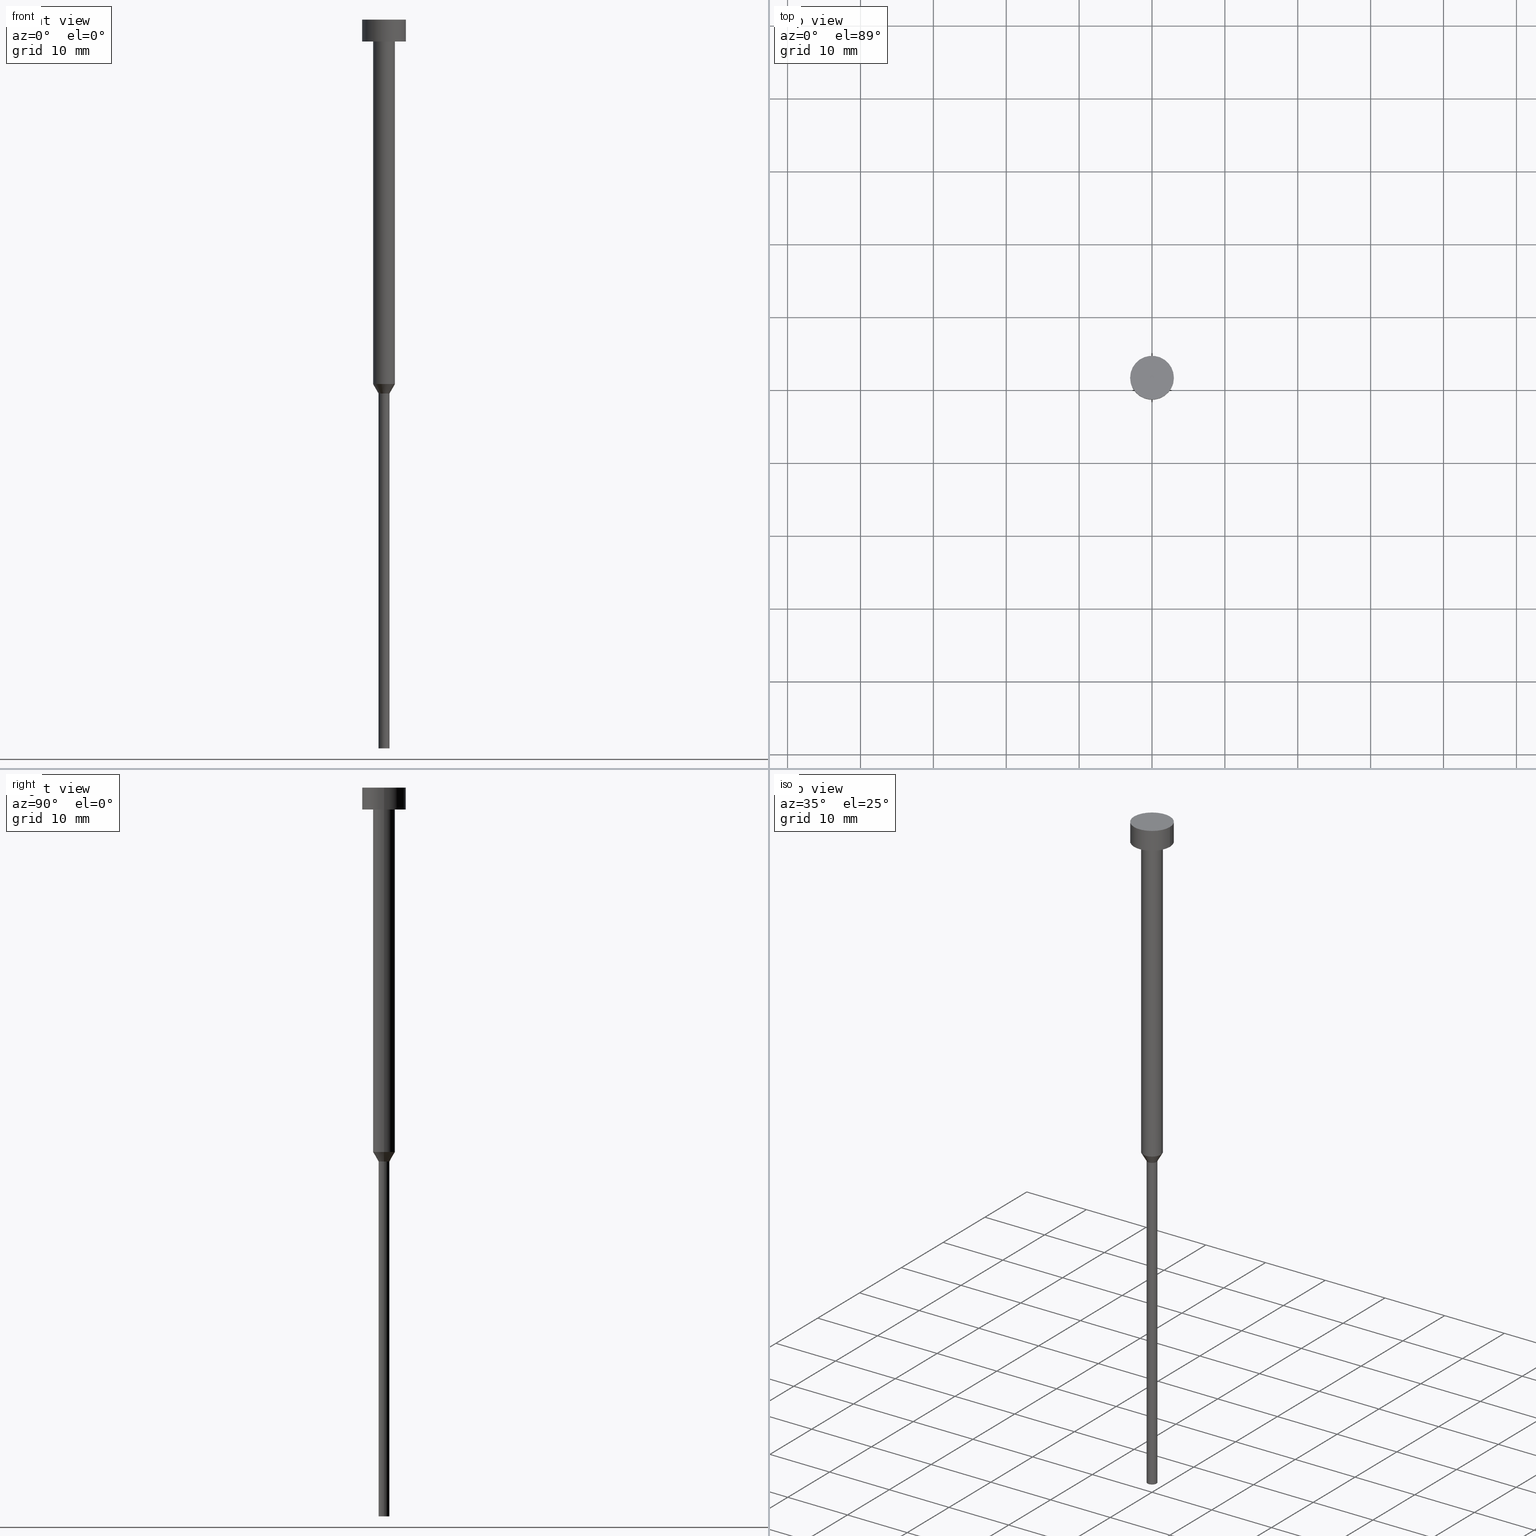
[diagram: canonical four-view strip — front | top / right | iso, engineering-drawing reading convention]
A machine part, canonical four-view strip (front | top / right | iso — engineering-drawing reading convention). The complete STEP part file that produces these views, byte-faithful:
ISO-10303-21;
HEADER;
FILE_DESCRIPTION (( 'STEP AP203' ),
    '1' );
FILE_NAME ('0ea3.STEP',
    '2023-02-13T10:57:13',
    ( '' ),
    ( '' ),
    'SwSTEP 2.0',
    'SolidWorks 2019',
    '' );
FILE_SCHEMA (( 'CONFIG_CONTROL_DESIGN' ));
ENDSEC;

DATA;
#1 = EDGE_LOOP ( 'NONE', ( #252, #6, #250, #31 ) ) ;
#2 = APPROVAL ( #184, 'NEUR�EN�' ) ;
#3 = CARTESIAN_POINT ( 'NONE',  ( 0.000000000000000000, 0.000000000000000000, -51.29903810567665090 ) ) ;
#4 = VECTOR ( 'NONE', #92, 1000.000000000000227 ) ;
#5 = VERTEX_POINT ( 'NONE', #287 ) ;
#6 = ORIENTED_EDGE ( 'NONE', *, *, #83, .T. ) ;
#7 = AXIS2_PLACEMENT_3D ( 'NONE', #312, #101, #75 ) ;
#8 = ORIENTED_EDGE ( 'NONE', *, *, #51, .F. ) ;
#9 = CARTESIAN_POINT ( 'NONE',  ( 1.500000000000000000, 0.000000000000000000, -50.00000000000000000 ) ) ;
#10 = AXIS2_PLACEMENT_3D ( 'NONE', #277, #228, #66 ) ;
#11 = FACE_OUTER_BOUND ( 'NONE', #29, .T. ) ;
#12 = CARTESIAN_POINT ( 'NONE',  ( -1.500000000000000000, 1.836970198721029934E-16, -3.000000000000000888 ) ) ;
#13 = CARTESIAN_POINT ( 'NONE',  ( 0.000000000000000000, 0.000000000000000000, -3.673940397442059868E-16 ) ) ;
#14 = EDGE_CURVE ( 'NONE', #143, #137, #78, .T. ) ;
#15 = AXIS2_PLACEMENT_3D ( 'NONE', #130, #344, #49 ) ;
#16 = AXIS2_PLACEMENT_3D ( 'NONE', #227, #333, #146 ) ;
#17 = CALENDAR_DATE ( 2023, 13, 2 ) ;
#18 = ADVANCED_FACE ( 'NONE', ( #289 ), #345, .T. ) ;
#19 = APPLICATION_PROTOCOL_DEFINITION ( 'international standard', 'config_control_design', 1994, #308 ) ;
#20 = ORIENTED_EDGE ( 'NONE', *, *, #99, .T. ) ;
#21 = PERSON_AND_ORGANIZATION ( #68, #275 ) ;
#22 = CARTESIAN_POINT ( 'NONE',  ( 0.000000000000000000, 0.000000000000000000, -3.000000000000000888 ) ) ;
#23 = LOCAL_TIME ( 11, 57, 13.00000000000000000, #288 ) ;
#24 = DIRECTION ( 'NONE',  ( -0.000000000000000000, -0.000000000000000000, 1.000000000000000000 ) ) ;
#25 = PERSON_AND_ORGANIZATION_ROLE ( 'design_supplier' ) ;
#26 = LINE ( 'NONE', #103, #52 ) ;
#27 = AXIS2_PLACEMENT_3D ( 'NONE', #251, #300, #109 ) ;
#28 = DIRECTION ( 'NONE',  ( 1.000000000000000000, 0.000000000000000000, 0.000000000000000000 ) ) ;
#29 = EDGE_LOOP ( 'NONE', ( #276, #297, #327, #221 ) ) ;
#30 = CARTESIAN_POINT ( 'NONE',  ( 0.000000000000000000, 0.000000000000000000, -50.00000000000000000 ) ) ;
#31 = ORIENTED_EDGE ( 'NONE', *, *, #285, .F. ) ;
#32 = CARTESIAN_POINT ( 'NONE',  ( -3.000000000000000000, 3.673940397442059868E-16, 0.000000000000000000 ) ) ;
#33 = DIRECTION ( 'NONE',  ( 1.000000000000000000, 0.000000000000000000, 0.000000000000000000 ) ) ;
#34 = VECTOR ( 'NONE', #111, 1000.000000000000000 ) ;
#35 = ORIENTED_EDGE ( 'NONE', *, *, #55, .F. ) ;
#36 = ORIENTED_EDGE ( 'NONE', *, *, #55, .T. ) ;
#37 = DIRECTION ( 'NONE',  ( 1.000000000000000000, 0.000000000000000000, 0.000000000000000000 ) ) ;
#38 = EDGE_CURVE ( 'NONE', #136, #194, #26, .T. ) ;
#39 = CARTESIAN_POINT ( 'NONE',  ( 1.500000000000000000, 0.000000000000000000, -3.000000000000000888 ) ) ;
#40 = CIRCLE ( 'NONE', #278, 0.7500000000000000000 ) ;
#41 = AXIS2_PLACEMENT_3D ( 'NONE', #57, #166, #85 ) ;
#42 = CALENDAR_DATE ( 2023, 13, 2 ) ;
#43 = DIRECTION ( 'NONE',  ( 1.000000000000000000, 0.000000000000000000, 0.000000000000000000 ) ) ;
#44 = DATE_TIME_ROLE ( 'creation_date' ) ;
#45 = DIRECTION ( 'NONE',  ( 1.000000000000000000, 0.000000000000000000, 0.000000000000000000 ) ) ;
#46 = ADVANCED_FACE ( 'NONE', ( #205 ), #208, .T. ) ;
#47 = PERSON_AND_ORGANIZATION ( #68, #275 ) ;
#48 = DIRECTION ( 'NONE',  ( 1.000000000000000000, 0.000000000000000000, 0.000000000000000000 ) ) ;
#49 = DIRECTION ( 'NONE',  ( 1.000000000000000000, 0.000000000000000000, 0.000000000000000000 ) ) ;
#50 = CARTESIAN_POINT ( 'NONE',  ( -1.500000000000000000, 1.836970198721029934E-16, 0.000000000000000000 ) ) ;
#51 = EDGE_CURVE ( 'NONE', #324, #270, #305, .T. ) ;
#52 = VECTOR ( 'NONE', #353, 1000.000000000000000 ) ;
#53 = ORIENTED_EDGE ( 'NONE', *, *, #267, .T. ) ;
#54 = CARTESIAN_POINT ( 'NONE',  ( 1.500000000000000000, 0.000000000000000000, 0.000000000000000000 ) ) ;
#55 = EDGE_CURVE ( 'NONE', #5, #270, #211, .T. ) ;
#56 = ORIENTED_EDGE ( 'NONE', *, *, #14, .F. ) ;
#57 = CARTESIAN_POINT ( 'NONE',  ( 0.000000000000000000, 0.000000000000000000, 0.000000000000000000 ) ) ;
#58 = ORIENTED_EDGE ( 'NONE', *, *, #213, .T. ) ;
#59 = CARTESIAN_POINT ( 'NONE',  ( 3.000000000000000000, 0.000000000000000000, 0.000000000000000000 ) ) ;
#60 = EDGE_LOOP ( 'NONE', ( #20, #193, #110, #165 ) ) ;
#61 = CC_DESIGN_DATE_AND_TIME_ASSIGNMENT ( #341, #44, ( #133 ) ) ;
#62 = CC_DESIGN_DATE_AND_TIME_ASSIGNMENT ( #317, #153, ( #176 ) ) ;
#63 = DIRECTION ( 'NONE',  ( -1.000000000000000000, 0.000000000000000000, -0.000000000000000000 ) ) ;
#64 = LOCAL_TIME ( 11, 57, 13.00000000000000000, #265 ) ;
#65 = ORIENTED_EDGE ( 'NONE', *, *, #83, .F. ) ;
#66 = DIRECTION ( 'NONE',  ( 1.000000000000000000, 0.000000000000000000, 0.000000000000000000 ) ) ;
#67 = EDGE_CURVE ( 'NONE', #5, #271, #95, .T. ) ;
#68 = PERSON ( 'NEUR�EN�', 'NEUR�EN�', 'NEUR�EN�', ('NEUR�EN�'), ('NEUR�EN�'), ('NEUR�EN�') ) ;
#69 = DIRECTION ( 'NONE',  ( 1.000000000000000000, 0.000000000000000000, 0.000000000000000000 ) ) ;
#70 = CARTESIAN_POINT ( 'NONE',  ( 0.000000000000000000, -3.000000000000000000, -3.000000000000000888 ) ) ;
#71 =( LENGTH_UNIT ( ) NAMED_UNIT ( * ) SI_UNIT ( .MILLI., .METRE. ) );
#72 = DATE_AND_TIME ( #210, #64 ) ;
#73 = CIRCLE ( 'NONE', #301, 0.7500000000000000000 ) ;
#74 = PERSON_AND_ORGANIZATION ( #68, #275 ) ;
#75 = DIRECTION ( 'NONE',  ( 1.000000000000000000, 0.000000000000000000, 0.000000000000000000 ) ) ;
#76 = PERSON_AND_ORGANIZATION_ROLE ( 'design_owner' ) ;
#77 = CARTESIAN_POINT ( 'NONE',  ( 0.000000000000000000, 0.000000000000000000, -100.0000000000000000 ) ) ;
#78 = CIRCLE ( 'NONE', #106, 3.000000000000000000 ) ;
#79 = APPROVAL_ROLE ( '' ) ;
#80 = DIRECTION ( 'NONE',  ( -0.000000000000000000, -0.000000000000000000, 1.000000000000000000 ) ) ;
#81 = LOCAL_TIME ( 11, 57, 13.00000000000000000, #154 ) ;
#82 = COORDINATED_UNIVERSAL_TIME_OFFSET ( 1, 0, .AHEAD. ) ;
#83 = EDGE_CURVE ( 'NONE', #137, #143, #343, .T. ) ;
#84 = AXIS2_PLACEMENT_3D ( 'NONE', #237, #236, #186 ) ;
#85 = DIRECTION ( 'NONE',  ( 1.000000000000000000, 0.000000000000000000, 0.000000000000000000 ) ) ;
#86 = ORIENTED_EDGE ( 'NONE', *, *, #248, .T. ) ;
#87 = CIRCLE ( 'NONE', #269, 1.500000000000000000 ) ;
#88 = ORIENTED_EDGE ( 'NONE', *, *, #157, .T. ) ;
#89 = ORIENTED_EDGE ( 'NONE', *, *, #240, .F. ) ;
#90 = LINE ( 'NONE', #187, #335 ) ;
#91 = EDGE_LOOP ( 'NONE', ( #56, #65 ) ) ;
#92 = DIRECTION ( 'NONE',  ( 0.5000000000000021094, 0.000000000000000000, 0.8660254037844373753 ) ) ;
#93 = PLANE ( 'NONE',  #290 ) ;
#94 = CARTESIAN_POINT ( 'NONE',  ( 0.7500000000000000000, 0.000000000000000000, -51.29903810567665090 ) ) ;
#95 = CIRCLE ( 'NONE', #232, 1.500000000000000000 ) ;
#96 = LINE ( 'NONE', #124, #97 ) ;
#97 = VECTOR ( 'NONE', #340, 1000.000000000000000 ) ;
#98 = PERSON_AND_ORGANIZATION ( #68, #275 ) ;
#99 = EDGE_CURVE ( 'NONE', #173, #136, #123, .T. ) ;
#100 = PERSON_AND_ORGANIZATION_ROLE ( 'creator' ) ;
#101 = DIRECTION ( 'NONE',  ( -0.000000000000000000, -0.000000000000000000, 1.000000000000000000 ) ) ;
#102 = PERSON_AND_ORGANIZATION ( #68, #275 ) ;
#103 = CARTESIAN_POINT ( 'NONE',  ( -0.7500000000000000000, 9.184850993605149670E-17, 0.000000000000000000 ) ) ;
#104 = APPROVAL_ROLE ( '' ) ;
#105 = CARTESIAN_POINT ( 'NONE',  ( 3.000000000000000000, 0.000000000000000000, -3.000000000000000888 ) ) ;
#106 = AXIS2_PLACEMENT_3D ( 'NONE', #259, #239, #43 ) ;
#107 = DIRECTION ( 'NONE',  ( -0.000000000000000000, -0.000000000000000000, 1.000000000000000000 ) ) ;
#108 = CC_DESIGN_APPROVAL ( #352, ( #132 ) ) ;
#109 = DIRECTION ( 'NONE',  ( 1.000000000000000000, 0.000000000000000000, 0.000000000000000000 ) ) ;
#110 = ORIENTED_EDGE ( 'NONE', *, *, #260, .F. ) ;
#111 = DIRECTION ( 'NONE',  ( -0.000000000000000000, -0.000000000000000000, 1.000000000000000000 ) ) ;
#112 = CC_DESIGN_APPROVAL ( #2, ( #133 ) ) ;
#113 = FACE_OUTER_BOUND ( 'NONE', #329, .T. ) ;
#114 = ORIENTED_EDGE ( 'NONE', *, *, #163, .F. ) ;
#115 = DIRECTION ( 'NONE',  ( 0.000000000000000000, 0.000000000000000000, -1.000000000000000000 ) ) ;
#116 = CC_DESIGN_PERSON_AND_ORGANIZATION_ASSIGNMENT ( #98, #76, ( #258 ) ) ;
#117 = CARTESIAN_POINT ( 'NONE',  ( 0.000000000000000000, 0.000000000000000000, -51.29903810567665090 ) ) ;
#118 = EDGE_LOOP ( 'NONE', ( #164, #53, #299, #334 ) ) ;
#119 = DIRECTION ( 'NONE',  ( 0.000000000000000000, -0.000000000000000000, 1.000000000000000000 ) ) ;
#120 = CIRCLE ( 'NONE', #230, 0.7500000000000000000 ) ;
#121 = APPLICATION_CONTEXT ( 'configuration controlled 3d designs of mechanical parts and assemblies' ) ;
#122 = CARTESIAN_POINT ( 'NONE',  ( 3.000000000000000000, 0.000000000000000000, -3.673940397442059868E-16 ) ) ;
#123 = CIRCLE ( 'NONE', #84, 0.7500000000000000000 ) ;
#124 = CARTESIAN_POINT ( 'NONE',  ( 0.7500000000000000000, 0.000000000000000000, 0.000000000000000000 ) ) ;
#125 = CC_DESIGN_PERSON_AND_ORGANIZATION_ASSIGNMENT ( #21, #185, ( #176 ) ) ;
#126 = AXIS2_PLACEMENT_3D ( 'NONE', #144, #217, #214 ) ;
#127 = DESIGN_CONTEXT ( 'detailed design', #308, 'design' ) ;
#128 = PERSON_AND_ORGANIZATION_ROLE ( 'creator' ) ;
#129 = EDGE_LOOP ( 'NONE', ( #197, #169 ) ) ;
#130 = CARTESIAN_POINT ( 'NONE',  ( 0.000000000000000000, 0.000000000000000000, 0.000000000000000000 ) ) ;
#131 = CARTESIAN_POINT ( 'NONE',  ( 0.000000000000000000, 0.000000000000000000, 0.000000000000000000 ) ) ;
#132 = PRODUCT_DEFINITION_FORMATION_WITH_SPECIFIED_SOURCE ( 'LIBOVOLN�', '', #258, .NOT_KNOWN. ) ;
#133 = PRODUCT_DEFINITION ( 'NEZN�M�', '', #132, #127 ) ;
#134 = DIRECTION ( 'NONE',  ( 1.000000000000000000, 0.000000000000000000, 0.000000000000000000 ) ) ;
#135 = CONICAL_SURFACE ( 'NONE', #16, 1.500000000000000000, 0.5235987755983013692 ) ;
#136 = VERTEX_POINT ( 'NONE', #351 ) ;
#137 = VERTEX_POINT ( 'NONE', #349 ) ;
#138 = VECTOR ( 'NONE', #291, 1000.000000000000000 ) ;
#139 = CYLINDRICAL_SURFACE ( 'NONE', #27, 0.7500000000000000000 ) ;
#140 = EDGE_LOOP ( 'NONE', ( #284, #354, #225, #89 ) ) ;
#141 = AXIS2_PLACEMENT_3D ( 'NONE', #201, #226, #199 ) ;
#142 = FACE_BOUND ( 'NONE', #244, .T. ) ;
#143 = VERTEX_POINT ( 'NONE', #105 ) ;
#144 = CARTESIAN_POINT ( 'NONE',  ( 0.000000000000000000, 0.000000000000000000, 0.000000000000000000 ) ) ;
#145 = ORIENTED_EDGE ( 'NONE', *, *, #243, .T. ) ;
#146 = DIRECTION ( 'NONE',  ( 1.000000000000000000, 0.000000000000000000, 0.000000000000000000 ) ) ;
#147 = LOCAL_TIME ( 11, 57, 13.00000000000000000, #82 ) ;
#148 =( NAMED_UNIT ( * ) SI_UNIT ( $, .STERADIAN. ) SOLID_ANGLE_UNIT ( ) );
#149 = MANIFOLD_SOLID_BREP ( 'Rotovat1', #310 ) ;
#150 = AXIS2_PLACEMENT_3D ( 'NONE', #180, #183, #45 ) ;
#151 = DIRECTION ( 'NONE',  ( 1.000000000000000000, 0.000000000000000000, 0.000000000000000000 ) ) ;
#152 = APPROVAL_PERSON_ORGANIZATION ( #74, #280, #79 ) ;
#153 = DATE_TIME_ROLE ( 'classification_date' ) ;
#154 = COORDINATED_UNIVERSAL_TIME_OFFSET ( 1, 0, .AHEAD. ) ;
#155 = DIRECTION ( 'NONE',  ( 1.000000000000000000, 0.000000000000000000, 0.000000000000000000 ) ) ;
#156 = AXIS2_PLACEMENT_3D ( 'NONE', #77, #115, #63 ) ;
#157 = EDGE_CURVE ( 'NONE', #274, #304, #322, .T. ) ;
#158 = CIRCLE ( 'NONE', #281, 3.000000000000000000 ) ;
#159 = SHAPE_DEFINITION_REPRESENTATION ( #231, #207 ) ;
#160 = DIRECTION ( 'NONE',  ( -0.000000000000000000, -0.000000000000000000, 1.000000000000000000 ) ) ;
#161 = ADVANCED_FACE ( 'NONE', ( #316 ), #347, .T. ) ;
#162 = PRODUCT_RELATED_PRODUCT_CATEGORY ( 'detail', '', ( #258 ) ) ;
#163 = EDGE_CURVE ( 'NONE', #194, #5, #90, .T. ) ;
#164 = ORIENTED_EDGE ( 'NONE', *, *, #38, .F. ) ;
#165 = ORIENTED_EDGE ( 'NONE', *, *, #332, .F. ) ;
#166 = DIRECTION ( 'NONE',  ( -0.000000000000000000, -0.000000000000000000, 1.000000000000000000 ) ) ;
#167 = ORIENTED_EDGE ( 'NONE', *, *, #213, .F. ) ;
#168 = CYLINDRICAL_SURFACE ( 'NONE', #126, 3.000000000000000000 ) ;
#169 = ORIENTED_EDGE ( 'NONE', *, *, #267, .F. ) ;
#170 = EDGE_CURVE ( 'NONE', #137, #304, #355, .T. ) ;
#171 = VECTOR ( 'NONE', #246, 1000.000000000000000 ) ;
#172 = FACE_OUTER_BOUND ( 'NONE', #140, .T. ) ;
#173 = VERTEX_POINT ( 'NONE', #249 ) ;
#174 = LINE ( 'NONE', #9, #4 ) ;
#175 = CARTESIAN_POINT ( 'NONE',  ( 1.500000000000000000, 0.000000000000000000, -50.00000000000000000 ) ) ;
#176 = SECURITY_CLASSIFICATION ( '', '', #209 ) ;
#177 = DIRECTION ( 'NONE',  ( 1.000000000000000000, 0.000000000000000000, 0.000000000000000000 ) ) ;
#178 =( NAMED_UNIT ( * ) PLANE_ANGLE_UNIT ( ) SI_UNIT ( $, .RADIAN. ) );
#179 = APPROVAL_DATE_TIME ( #72, #2 ) ;
#180 = CARTESIAN_POINT ( 'NONE',  ( 0.000000000000000000, 0.000000000000000000, -3.000000000000000888 ) ) ;
#181 = AXIS2_PLACEMENT_3D ( 'NONE', #30, #325, #28 ) ;
#182 = DATE_AND_TIME ( #235, #23 ) ;
#183 = DIRECTION ( 'NONE',  ( -0.000000000000000000, -0.000000000000000000, 1.000000000000000000 ) ) ;
#184 = APPROVAL_STATUS ( 'not_yet_approved' ) ;
#185 = PERSON_AND_ORGANIZATION_ROLE ( 'classification_officer' ) ;
#186 = DIRECTION ( 'NONE',  ( 1.000000000000000000, 0.000000000000000000, 0.000000000000000000 ) ) ;
#187 = CARTESIAN_POINT ( 'NONE',  ( -1.500000000000000000, 1.836970198721029934E-16, -50.00000000000000000 ) ) ;
#188 = AXIS2_PLACEMENT_3D ( 'NONE', #131, #80, #155 ) ;
#189 = ORIENTED_EDGE ( 'NONE', *, *, #67, .F. ) ;
#190 = VECTOR ( 'NONE', #320, 1000.000000000000000 ) ;
#191 = LINE ( 'NONE', #59, #171 ) ;
#192 = ADVANCED_FACE ( 'NONE', ( #298 ), #139, .T. ) ;
#193 = ORIENTED_EDGE ( 'NONE', *, *, #38, .T. ) ;
#194 = VERTEX_POINT ( 'NONE', #215 ) ;
#195 = ORIENTED_EDGE ( 'NONE', *, *, #51, .T. ) ;
#196 = APPLICATION_PROTOCOL_DEFINITION ( 'international standard', 'config_control_design', 1994, #121 ) ;
#197 = ORIENTED_EDGE ( 'NONE', *, *, #99, .F. ) ;
#198 = ADVANCED_FACE ( 'NONE', ( #172 ), #323, .T. ) ;
#199 = DIRECTION ( 'NONE',  ( 1.000000000000000000, 0.000000000000000000, 0.000000000000000000 ) ) ;
#200 = FACE_OUTER_BOUND ( 'NONE', #241, .T. ) ;
#201 = CARTESIAN_POINT ( 'NONE',  ( 0.000000000000000000, 0.000000000000000000, -50.00000000000000000 ) ) ;
#202 = ADVANCED_FACE ( 'NONE', ( #268 ), #168, .T. ) ;
#203 = PERSON_AND_ORGANIZATION ( #68, #275 ) ;
#204 = ORIENTED_EDGE ( 'NONE', *, *, #67, .T. ) ;
#205 = FACE_OUTER_BOUND ( 'NONE', #60, .T. ) ;
#206 = APPROVAL_PERSON_ORGANIZATION ( #203, #2, #104 ) ;
#207 = ADVANCED_BREP_SHAPE_REPRESENTATION ( '0ea3', ( #149, #15 ), #294 ) ;
#208 = CYLINDRICAL_SURFACE ( 'NONE', #188, 0.7500000000000000000 ) ;
#209 = SECURITY_CLASSIFICATION_LEVEL ( 'unclassified' ) ;
#210 = CALENDAR_DATE ( 2023, 13, 2 ) ;
#211 = LINE ( 'NONE', #50, #138 ) ;
#212 = CIRCLE ( 'NONE', #141, 1.500000000000000000 ) ;
#213 = EDGE_CURVE ( 'NONE', #271, #324, #293, .T. ) ;
#214 = DIRECTION ( 'NONE',  ( 1.000000000000000000, 0.000000000000000000, 0.000000000000000000 ) ) ;
#215 = CARTESIAN_POINT ( 'NONE',  ( -0.7500000000000000000, 9.184850993605149670E-17, -51.29903810567665090 ) ) ;
#216 = ORIENTED_EDGE ( 'NONE', *, *, #321, .T. ) ;
#217 = DIRECTION ( 'NONE',  ( -0.000000000000000000, -0.000000000000000000, 1.000000000000000000 ) ) ;
#218 = ORIENTED_EDGE ( 'NONE', *, *, #342, .T. ) ;
#219 = CC_DESIGN_SECURITY_CLASSIFICATION ( #176, ( #132 ) ) ;
#220 = DIRECTION ( 'NONE',  ( -0.000000000000000000, -0.000000000000000000, 1.000000000000000000 ) ) ;
#221 = ORIENTED_EDGE ( 'NONE', *, *, #321, .F. ) ;
#222 = FACE_OUTER_BOUND ( 'NONE', #91, .T. ) ;
#223 = ORIENTED_EDGE ( 'NONE', *, *, #285, .T. ) ;
#224 = CARTESIAN_POINT ( 'NONE',  ( -3.000000000000000000, 3.673940397442059868E-16, -3.673940397442059868E-16 ) ) ;
#225 = ORIENTED_EDGE ( 'NONE', *, *, #157, .F. ) ;
#226 = DIRECTION ( 'NONE',  ( -0.000000000000000000, -0.000000000000000000, 1.000000000000000000 ) ) ;
#227 = CARTESIAN_POINT ( 'NONE',  ( 0.000000000000000000, 0.000000000000000000, -50.00000000000000000 ) ) ;
#228 = DIRECTION ( 'NONE',  ( -0.000000000000000000, -0.000000000000000000, 1.000000000000000000 ) ) ;
#229 = DIRECTION ( 'NONE',  ( -0.000000000000000000, -0.000000000000000000, 1.000000000000000000 ) ) ;
#230 = AXIS2_PLACEMENT_3D ( 'NONE', #117, #254, #151 ) ;
#231 = PRODUCT_DEFINITION_SHAPE ( 'NONE', 'NONE',  #133 ) ;
#232 = AXIS2_PLACEMENT_3D ( 'NONE', #263, #160, #48 ) ;
#233 = COORDINATED_UNIVERSAL_TIME_OFFSET ( 1, 0, .AHEAD. ) ;
#234 = ADVANCED_FACE ( 'NONE', ( #113 ), #319, .T. ) ;
#235 = CALENDAR_DATE ( 2023, 13, 2 ) ;
#236 = DIRECTION ( 'NONE',  ( -0.000000000000000000, -0.000000000000000000, 1.000000000000000000 ) ) ;
#237 = CARTESIAN_POINT ( 'NONE',  ( 0.000000000000000000, 0.000000000000000000, -100.0000000000000000 ) ) ;
#238 = APPROVAL_STATUS ( 'not_yet_approved' ) ;
#239 = DIRECTION ( 'NONE',  ( -0.000000000000000000, -0.000000000000000000, 1.000000000000000000 ) ) ;
#240 = EDGE_CURVE ( 'NONE', #143, #274, #191, .T. ) ;
#241 = EDGE_LOOP ( 'NONE', ( #88, #223 ) ) ;
#242 = CC_DESIGN_APPROVAL ( #280, ( #176 ) ) ;
#243 = EDGE_CURVE ( 'NONE', #194, #331, #73, .T. ) ;
#244 = EDGE_LOOP ( 'NONE', ( #195, #86 ) ) ;
#245 = EDGE_LOOP ( 'NONE', ( #218, #36, #8, #167 ) ) ;
#246 = DIRECTION ( 'NONE',  ( -0.000000000000000000, -0.000000000000000000, 1.000000000000000000 ) ) ;
#247 = AXIS2_PLACEMENT_3D ( 'NONE', #70, #338, #279 ) ;
#248 = EDGE_CURVE ( 'NONE', #270, #324, #87, .T. ) ;
#249 = CARTESIAN_POINT ( 'NONE',  ( 0.7500000000000000000, 0.000000000000000000, -100.0000000000000000 ) ) ;
#250 = ORIENTED_EDGE ( 'NONE', *, *, #240, .T. ) ;
#251 = CARTESIAN_POINT ( 'NONE',  ( 0.000000000000000000, 0.000000000000000000, 0.000000000000000000 ) ) ;
#252 = ORIENTED_EDGE ( 'NONE', *, *, #170, .F. ) ;
#253 = CARTESIAN_POINT ( 'NONE',  ( 0.000000000000000000, 0.000000000000000000, -100.0000000000000000 ) ) ;
#254 = DIRECTION ( 'NONE',  ( -0.000000000000000000, -0.000000000000000000, 1.000000000000000000 ) ) ;
#255 = ADVANCED_FACE ( 'NONE', ( #142, #222 ), #330, .T. ) ;
#256 = LOCAL_TIME ( 11, 57, 13.00000000000000000, #233 ) ;
#257 = MECHANICAL_CONTEXT ( 'NONE', #121, 'mechanical' ) ;
#258 = PRODUCT ( '0ea3', '0ea3', '', ( #257 ) ) ;
#259 = CARTESIAN_POINT ( 'NONE',  ( 0.000000000000000000, 0.000000000000000000, -3.000000000000000888 ) ) ;
#260 = EDGE_CURVE ( 'NONE', #331, #194, #120, .T. ) ;
#261 = AXIS2_PLACEMENT_3D ( 'NONE', #266, #107, #318 ) ;
#262 = DATE_AND_TIME ( #42, #256 ) ;
#263 = CARTESIAN_POINT ( 'NONE',  ( 0.000000000000000000, 0.000000000000000000, -50.00000000000000000 ) ) ;
#264 = EDGE_LOOP ( 'NONE', ( #35, #204, #58, #295 ) ) ;
#265 = COORDINATED_UNIVERSAL_TIME_OFFSET ( 1, 0, .AHEAD. ) ;
#266 = CARTESIAN_POINT ( 'NONE',  ( 0.000000000000000000, 0.000000000000000000, -3.673940397442059868E-16 ) ) ;
#267 = EDGE_CURVE ( 'NONE', #136, #173, #40, .T. ) ;
#268 = FACE_OUTER_BOUND ( 'NONE', #1, .T. ) ;
#269 = AXIS2_PLACEMENT_3D ( 'NONE', #292, #273, #33 ) ;
#270 = VERTEX_POINT ( 'NONE', #12 ) ;
#271 = VERTEX_POINT ( 'NONE', #175 ) ;
#272 = AXIS2_PLACEMENT_3D ( 'NONE', #22, #24, #134 ) ;
#273 = DIRECTION ( 'NONE',  ( -0.000000000000000000, -0.000000000000000000, 1.000000000000000000 ) ) ;
#274 = VERTEX_POINT ( 'NONE', #122 ) ;
#275 = ORGANIZATION ( 'NEUR�EN�', 'NEUR�EN�', '' ) ;
#276 = ORIENTED_EDGE ( 'NONE', *, *, #260, .T. ) ;
#277 = CARTESIAN_POINT ( 'NONE',  ( 0.000000000000000000, 0.000000000000000000, 0.000000000000000000 ) ) ;
#278 = AXIS2_PLACEMENT_3D ( 'NONE', #253, #229, #69 ) ;
#279 = DIRECTION ( 'NONE',  ( -1.000000000000000000, 0.000000000000000000, -0.000000000000000000 ) ) ;
#280 = APPROVAL ( #238, 'NEUR�EN�' ) ;
#281 = AXIS2_PLACEMENT_3D ( 'NONE', #13, #309, #37 ) ;
#282 = CALENDAR_DATE ( 2023, 13, 2 ) ;
#283 = APPROVAL_DATE_TIME ( #182, #280 ) ;
#284 = ORIENTED_EDGE ( 'NONE', *, *, #14, .T. ) ;
#285 = EDGE_CURVE ( 'NONE', #304, #274, #158, .T. ) ;
#286 = PERSON_AND_ORGANIZATION ( #68, #275 ) ;
#287 = CARTESIAN_POINT ( 'NONE',  ( -1.500000000000000000, 1.836970198721029934E-16, -50.00000000000000000 ) ) ;
#288 = COORDINATED_UNIVERSAL_TIME_OFFSET ( 1, 0, .AHEAD. ) ;
#289 = FACE_OUTER_BOUND ( 'NONE', #264, .T. ) ;
#290 = AXIS2_PLACEMENT_3D ( 'NONE', #306, #119, #177 ) ;
#291 = DIRECTION ( 'NONE',  ( -0.000000000000000000, -0.000000000000000000, 1.000000000000000000 ) ) ;
#292 = CARTESIAN_POINT ( 'NONE',  ( 0.000000000000000000, 0.000000000000000000, -3.000000000000000888 ) ) ;
#293 = LINE ( 'NONE', #54, #190 ) ;
#294 =( GEOMETRIC_REPRESENTATION_CONTEXT ( 3 ) GLOBAL_UNCERTAINTY_ASSIGNED_CONTEXT ( ( #346 ) ) GLOBAL_UNIT_ASSIGNED_CONTEXT ( ( #71, #178, #148 ) ) REPRESENTATION_CONTEXT ( 'NONE', 'WORKASPACE' ) );
#295 = ORIENTED_EDGE ( 'NONE', *, *, #248, .F. ) ;
#296 = DIRECTION ( 'NONE',  ( -0.5000000000000021094, 6.123233995736791920E-17, 0.8660254037844373753 ) ) ;
#297 = ORIENTED_EDGE ( 'NONE', *, *, #163, .T. ) ;
#298 = FACE_OUTER_BOUND ( 'NONE', #118, .T. ) ;
#299 = ORIENTED_EDGE ( 'NONE', *, *, #332, .T. ) ;
#300 = DIRECTION ( 'NONE',  ( -0.000000000000000000, -0.000000000000000000, 1.000000000000000000 ) ) ;
#301 = AXIS2_PLACEMENT_3D ( 'NONE', #3, #220, #328 ) ;
#302 = CC_DESIGN_PERSON_AND_ORGANIZATION_ASSIGNMENT ( #348, #25, ( #132 ) ) ;
#303 = FACE_OUTER_BOUND ( 'NONE', #245, .T. ) ;
#304 = VERTEX_POINT ( 'NONE', #224 ) ;
#305 = CIRCLE ( 'NONE', #150, 1.500000000000000000 ) ;
#306 = CARTESIAN_POINT ( 'NONE',  ( 0.000000000000000000, 0.000000000000000000, -1.836970198721029934E-16 ) ) ;
#307 = CC_DESIGN_PERSON_AND_ORGANIZATION_ASSIGNMENT ( #286, #128, ( #133 ) ) ;
#308 = APPLICATION_CONTEXT ( 'configuration controlled 3d designs of mechanical parts and assemblies' ) ;
#309 = DIRECTION ( 'NONE',  ( -0.000000000000000000, -0.000000000000000000, 1.000000000000000000 ) ) ;
#310 = CLOSED_SHELL ( 'NONE', ( #198, #315, #313, #46, #161, #192, #234, #18, #255, #202, #336 ) ) ;
#311 = APPROVAL_ROLE ( '' ) ;
#312 = CARTESIAN_POINT ( 'NONE',  ( 0.000000000000000000, 0.000000000000000000, 0.000000000000000000 ) ) ;
#313 = ADVANCED_FACE ( 'NONE', ( #11 ), #135, .T. ) ;
#314 = APPROVAL_STATUS ( 'not_yet_approved' ) ;
#315 = ADVANCED_FACE ( 'NONE', ( #303 ), #339, .T. ) ;
#316 = FACE_OUTER_BOUND ( 'NONE', #129, .T. ) ;
#317 = DATE_AND_TIME ( #17, #81 ) ;
#318 = DIRECTION ( 'NONE',  ( 1.000000000000000000, 0.000000000000000000, 0.000000000000000000 ) ) ;
#319 = CONICAL_SURFACE ( 'NONE', #181, 1.500000000000000000, 0.5235987755983013692 ) ;
#320 = DIRECTION ( 'NONE',  ( -0.000000000000000000, -0.000000000000000000, 1.000000000000000000 ) ) ;
#321 = EDGE_CURVE ( 'NONE', #331, #271, #174, .T. ) ;
#322 = CIRCLE ( 'NONE', #261, 3.000000000000000000 ) ;
#323 = CYLINDRICAL_SURFACE ( 'NONE', #41, 3.000000000000000000 ) ;
#324 = VERTEX_POINT ( 'NONE', #39 ) ;
#325 = DIRECTION ( 'NONE',  ( -0.000000000000000000, -0.000000000000000000, 1.000000000000000000 ) ) ;
#326 = APPROVAL_PERSON_ORGANIZATION ( #102, #352, #311 ) ;
#327 = ORIENTED_EDGE ( 'NONE', *, *, #342, .F. ) ;
#328 = DIRECTION ( 'NONE',  ( 1.000000000000000000, 0.000000000000000000, 0.000000000000000000 ) ) ;
#329 = EDGE_LOOP ( 'NONE', ( #114, #145, #216, #189 ) ) ;
#330 = PLANE ( 'NONE',  #247 ) ;
#331 = VERTEX_POINT ( 'NONE', #94 ) ;
#332 = EDGE_CURVE ( 'NONE', #173, #331, #96, .T. ) ;
#333 = DIRECTION ( 'NONE',  ( -0.000000000000000000, -0.000000000000000000, 1.000000000000000000 ) ) ;
#334 = ORIENTED_EDGE ( 'NONE', *, *, #243, .F. ) ;
#335 = VECTOR ( 'NONE', #296, 1000.000000000000227 ) ;
#336 = ADVANCED_FACE ( 'NONE', ( #200 ), #93, .T. ) ;
#337 = CC_DESIGN_PERSON_AND_ORGANIZATION_ASSIGNMENT ( #47, #100, ( #132 ) ) ;
#338 = DIRECTION ( 'NONE',  ( 0.000000000000000000, 0.000000000000000000, -1.000000000000000000 ) ) ;
#339 = CYLINDRICAL_SURFACE ( 'NONE', #10, 1.500000000000000000 ) ;
#340 = DIRECTION ( 'NONE',  ( -0.000000000000000000, -0.000000000000000000, 1.000000000000000000 ) ) ;
#341 = DATE_AND_TIME ( #282, #147 ) ;
#342 = EDGE_CURVE ( 'NONE', #271, #5, #212, .T. ) ;
#343 = CIRCLE ( 'NONE', #272, 3.000000000000000000 ) ;
#344 = DIRECTION ( 'NONE',  ( 0.000000000000000000, 0.000000000000000000, 1.000000000000000000 ) ) ;
#345 = CYLINDRICAL_SURFACE ( 'NONE', #7, 1.500000000000000000 ) ;
#346 = UNCERTAINTY_MEASURE_WITH_UNIT (LENGTH_MEASURE( 1.000000000000000082E-05 ), #71, 'distance_accuracy_value', 'NONE');
#347 = PLANE ( 'NONE',  #156 ) ;
#348 = PERSON_AND_ORGANIZATION ( #68, #275 ) ;
#349 = CARTESIAN_POINT ( 'NONE',  ( -3.000000000000000000, 3.673940397442059868E-16, -3.000000000000000888 ) ) ;
#350 = APPROVAL_DATE_TIME ( #262, #352 ) ;
#351 = CARTESIAN_POINT ( 'NONE',  ( -0.7500000000000000000, 9.184850993605149670E-17, -100.0000000000000000 ) ) ;
#352 = APPROVAL ( #314, 'NEUR�EN�' ) ;
#353 = DIRECTION ( 'NONE',  ( -0.000000000000000000, -0.000000000000000000, 1.000000000000000000 ) ) ;
#354 = ORIENTED_EDGE ( 'NONE', *, *, #170, .T. ) ;
#355 = LINE ( 'NONE', #32, #34 ) ;
ENDSEC;
END-ISO-10303-21;
